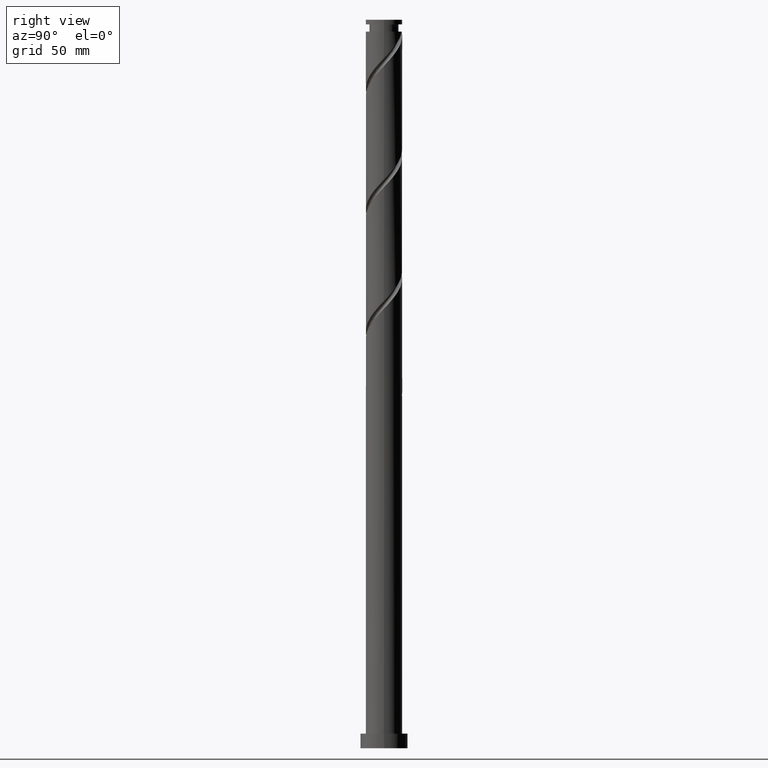
[diagram: clean part render]
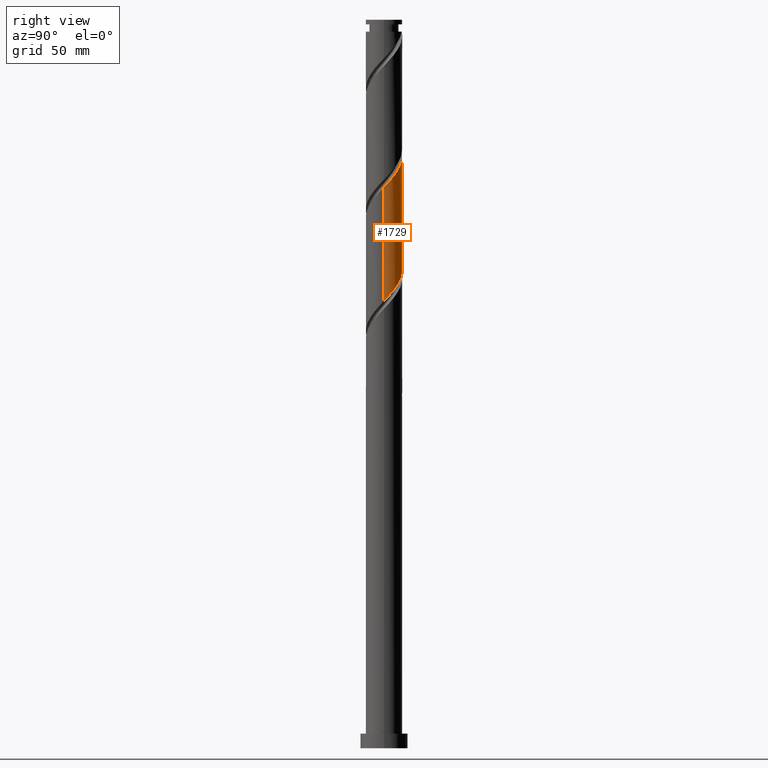
[diagram: same view with one face highlighted and labeled with its STEP entity id]
A machine part, right view. The second image highlights one B-rep face of the part: STEP entity #1729.
In plain terms, the highlighted cylindrical surface (edge-blend (fillet) strip) has radius 10 mm, axis along (-0, -0, -1).
Its self-contained STEP definition (entity closure, byte-faithful):
#57 = CARTESIAN_POINT ( 'NONE',  ( 3.984023718746290577, 9.172107446408757525, 257.9605896679708508 ) ) ;
#76 = CARTESIAN_POINT ( 'NONE',  ( -9.954323590151835432, 0.9546946436147952797, 277.9605896679709645 ) ) ;
#97 = CARTESIAN_POINT ( 'NONE',  ( -10.00000000000000178, 0.000000000000000000, 400.0000000000000000 ) ) ;
#106 = CARTESIAN_POINT ( 'NONE',  ( 6.795917408009032101, 7.410816190582412588, 316.8494785568597081 ) ) ;
#126 = FACE_OUTER_BOUND ( 'NONE', #889, .T. ) ;
#145 = CARTESIAN_POINT ( 'NONE',  ( 9.954323590151849643, 0.9546946436147862869, 309.0717007790820503 ) ) ;
#155 = CARTESIAN_POINT ( 'NONE',  ( -9.935289914203558226, 1.135787973490352654, 340.1828118901931362 ) ) ;
#172 = CARTESIAN_POINT ( 'NONE',  ( -10.00000000000001243, 0.5697373744643521309, 340.7851106706203268 ) ) ;
#188 = CARTESIAN_POINT ( 'NONE',  ( 0.9599533686096159979, 10.00915478735209696, 261.2939230013041652 ) ) ;
#208 = CARTESIAN_POINT ( 'NONE',  ( 10.00000000000000355, 1.186904184400837714E-14, 245.6415884670479386 ) ) ;
#210 = VERTEX_POINT ( 'NONE', #1443 ) ;
#217 = CARTESIAN_POINT ( 'NONE',  ( -8.705417805181468793, 4.920945116258621077, 273.5161452235265074 ) ) ;
#222 = CARTESIAN_POINT ( 'NONE',  ( 8.188205631952753194, 5.835921397340425365, 314.6272563346374795 ) ) ;
#247 = CARTESIAN_POINT ( 'NONE',  ( 9.222629978410214591, 4.005968835176815901, 312.4050341124153647 ) ) ;
#256 =( BOUNDED_CURVE ( )  B_SPLINE_CURVE ( 2, ( #873, #1924, #76, #1774, #556, #1324, #217, #1801, #398, #1764, #1793, #520, #1151, #993, #702, #1305, #1914, #188, #1332, #372, #57, #1461, #685, #1313, #830, #862, #1491, #529, #543, #1003, #1942, #1617, #208 ),
 .UNSPECIFIED., .F., .T. ) 
 B_SPLINE_CURVE_WITH_KNOTS ( ( 3, 2, 2, 2, 2, 2, 2, 2, 2, 2, 2, 2, 2, 2, 2, 2, 3 ),
 ( 0.6795286012773114059, 0.6833333333333333481, 0.6916666666666666519, 0.6999999999999999556, 0.7083333333333333703, 0.7166666666666666741, 0.7249999999999999778, 0.7333333333333332815, 0.7416666666666666963, 0.7500000000000000000, 0.7583333333333333037, 0.7666666666666667185, 0.7750000000000000222, 0.7833333333333333259, 0.7916666666666666297, 0.8000000000000000444, 0.8045286012773114059 ),
 .UNSPECIFIED. ) 
 CURVE ( )  GEOMETRIC_REPRESENTATION_ITEM ( )  RATIONAL_B_SPLINE_CURVE ( ( 0.9066196499552116039, 0.9068171577856243282, 0.9090909090909231605, 0.9041108139711716563, 0.9090909090909231605, 0.9041108139711716563, 0.9090909090909231605, 0.9041108139711716563, 0.9090909090909231605, 0.9041108139711716563, 0.9090909090909231605, 0.9041108139711716563, 0.9090909090909231605, 0.9041108139711716563, 0.9090909090909231605, 0.9041108139711716563, 0.9090909090909231605, 0.9041108139711716563, 0.9090909090909231605, 0.9041108139711716563, 0.9090909090909231605, 0.9041108139711716563, 0.9090909090909231605, 0.9041108139711716563, 0.9090909090909231605, 0.9041108139711716563, 0.9090909090909231605, 0.9041108139711716563, 0.9090909090909231605, 0.9041108139711716563, 0.9090909090909231605, 0.9063845652764704885, 0.9066196499552116039 ) ) 
 REPRESENTATION_ITEM ( '' )  );
#283 = CARTESIAN_POINT ( 'NONE',  ( 10.00000000000001776, 4.065968994420978722E-15, 308.0573686466716481 ) ) ;
#300 = CARTESIAN_POINT ( 'NONE',  ( 10.00000000000001954, 4.065968994420978722E-15, 308.0573686466716481 ) ) ;
#308 = CARTESIAN_POINT ( 'NONE',  ( -7.370218964083909974, 6.758688661379380846, 333.5161452235263937 ) ) ;
#309 = AXIS2_PLACEMENT_3D ( 'NONE', #608, #1689, #1242 ) ;
#353 = CARTESIAN_POINT ( 'NONE',  ( -3.019996379816877852, 9.590845212647922224, 327.9605896679708508 ) ) ;
#372 = CARTESIAN_POINT ( 'NONE',  ( 3.019996379816882293, 9.590845212647904461, 259.0717007790819935 ) ) ;
#398 = CARTESIAN_POINT ( 'NONE',  ( -7.492061519980878437, 6.623368793961415868, 271.2939230013042788 ) ) ;
#474 = CARTESIAN_POINT ( 'NONE',  ( -4.948051057675699305, 8.753369680169631906, 330.1828118901930793 ) ) ;
#484 = CARTESIAN_POINT ( 'NONE',  ( -1.989974874213244149, 9.800000000000013145, 326.8494785568597081 ) ) ;
#494 = CARTESIAN_POINT ( 'NONE',  ( -8.614372383899674190, 5.078640411715219294, 335.7383674457485654 ) ) ;
#520 = CARTESIAN_POINT ( 'NONE',  ( -5.106614982905509414, 8.661822755254421580, 267.9605896679708508 ) ) ;
#529 = CARTESIAN_POINT ( 'NONE',  ( 9.148159000562355203, 4.173233390011670707, 250.1828118901930793 ) ) ;
#543 = CARTESIAN_POINT ( 'NONE',  ( 9.482036394194125251, 3.176631206038579958, 249.0717007790819935 ) ) ;
#550 =( BOUNDED_CURVE ( )  B_SPLINE_CURVE ( 2, ( #300, #1845, #145, #1412, #625, #247, #890, #222, #1257, #106, #867, #710, #734, #552, #1188, #1798, #667, #1582, #484, #353, #1896, #474, #1265, #986, #308, #1121, #494, #1300, #966, #1421, #155, #172, #791 ),
 .UNSPECIFIED., .F., .T. ) 
 B_SPLINE_CURVE_WITH_KNOTS ( ( 3, 2, 2, 2, 2, 2, 2, 2, 2, 2, 2, 2, 2, 2, 2, 2, 3 ),
 ( 0.4295286012773115725, 0.4333333333333333481, 0.4416666666666666519, 0.4499999999999999556, 0.4583333333333333703, 0.4666666666666666741, 0.4749999999999999778, 0.4833333333333332815, 0.4916666666666666963, 0.5000000000000000000, 0.5083333333333333037, 0.5166666666666666075, 0.5250000000000000222, 0.5333333333333333259, 0.5416666666666667407, 0.5500000000000000444, 0.5545286012773112949 ),
 .UNSPECIFIED. ) 
 CURVE ( )  GEOMETRIC_REPRESENTATION_ITEM ( )  RATIONAL_B_SPLINE_CURVE ( ( 0.9066196499552174881, 0.9068171577856303234, 0.9090909090909291557, 0.9041108139711774294, 0.9090909090909291557, 0.9041108139711774294, 0.9090909090909291557, 0.9041108139711774294, 0.9090909090909291557, 0.9041108139711774294, 0.9090909090909291557, 0.9041108139711774294, 0.9090909090909291557, 0.9041108139711774294, 0.9090909090909291557, 0.9041108139711774294, 0.9090909090909291557, 0.9041108139711774294, 0.9090909090909291557, 0.9041108139711774294, 0.9090909090909291557, 0.9041108139711774294, 0.9090909090909291557, 0.9041108139711774294, 0.9090909090909291557, 0.9041108139711774294, 0.9090909090909291557, 0.9041108139711774294, 0.9090909090909291557, 0.9041108139711774294, 0.9090909090909291557, 0.9063845652764763727, 0.9066196499552174881 ) ) 
 REPRESENTATION_ITEM ( '' )  );
#552 = CARTESIAN_POINT ( 'NONE',  ( 3.194128978791649143, 9.534266101484794476, 321.2939230013042220 ) ) ;
#556 = CARTESIAN_POINT ( 'NONE',  ( -9.538305559066326822, 3.003452523660803841, 275.7383674457486791 ) ) ;
#563 = DIRECTION ( 'NONE',  ( -0.000000000000000000, -0.000000000000000000, -1.000000000000000000 ) ) ;
#608 = CARTESIAN_POINT ( 'NONE',  ( 0.000000000000000000, 0.000000000000000000, 400.0000000000000000 ) ) ;
#625 = CARTESIAN_POINT ( 'NONE',  ( 9.538305559066342809, 3.003452523660800288, 311.2939230013041652 ) ) ;
#657 = CARTESIAN_POINT ( 'NONE',  ( -10.00000000000001599, -1.195873233653229007E-16, 341.3907019800048488 ) ) ;
#667 = CARTESIAN_POINT ( 'NONE',  ( 0.09104542128180637128, 9.999585527973840371, 324.6272563346374795 ) ) ;
#668 = VERTEX_POINT ( 'NONE', #657 ) ;
#685 = CARTESIAN_POINT ( 'NONE',  ( 5.803951609303267034, 8.143349784754802201, 255.7383674457486222 ) ) ;
#702 = CARTESIAN_POINT ( 'NONE',  ( -2.168086594982426174, 9.762141185040174918, 264.6272563346375364 ) ) ;
#710 = CARTESIAN_POINT ( 'NONE',  ( 5.106614982905524514, 8.661822755254428685, 319.0717007790820503 ) ) ;
#725 = DIRECTION ( 'NONE',  ( -0.000000000000000000, -0.000000000000000000, -1.000000000000000000 ) ) ;
#732 = EDGE_CURVE ( 'NONE', #1876, #210, #1865, .T. ) ;
#734 = CARTESIAN_POINT ( 'NONE',  ( 4.150371980848582609, 9.098044428369609804, 320.1828118901929088 ) ) ;
#791 = CARTESIAN_POINT ( 'NONE',  ( -10.00000000000001599, -1.195873233653229007E-16, 341.3907019800047919 ) ) ;
#830 = CARTESIAN_POINT ( 'NONE',  ( 7.370218964083904645, 6.758688661379370188, 253.5161452235263937 ) ) ;
#862 = CARTESIAN_POINT ( 'NONE',  ( 8.080585767236984296, 5.984047433418739459, 252.4050341124153363 ) ) ;
#867 = CARTESIAN_POINT ( 'NONE',  ( 5.951266195457275643, 8.036319472918419748, 317.9605896679707371 ) ) ;
#873 = CARTESIAN_POINT ( 'NONE',  ( -10.00000000000000000, 1.162986719727772808E-14, 278.9749218003812530 ) ) ;
#877 = ORIENTED_EDGE ( 'NONE', *, *, #922, .F. ) ;
#889 = EDGE_LOOP ( 'NONE', ( #877, #1758, #1519, #1835 ) ) ;
#890 = CARTESIAN_POINT ( 'NONE',  ( 8.705417805181479451, 4.920945116258624630, 313.5161452235263368 ) ) ;
#922 = EDGE_CURVE ( 'NONE', #1876, #668, #550, .T. ) ;
#966 = CARTESIAN_POINT ( 'NONE',  ( -9.482036394194134132, 3.176631206038594168, 337.9605896679708508 ) ) ;
#986 = CARTESIAN_POINT ( 'NONE',  ( -6.659852160930831211, 7.533329889340008023, 332.4050341124153078 ) ) ;
#993 = CARTESIAN_POINT ( 'NONE',  ( -3.194128978791638485, 9.534266101484783817, 265.7383674457486791 ) ) ;
#1003 = CARTESIAN_POINT ( 'NONE',  ( 9.815913787825893522, 2.180029022065497202, 247.9605896679708792 ) ) ;
#1121 = CARTESIAN_POINT ( 'NONE',  ( -8.080585767236989625, 5.984047433418756334, 334.6272563346375364 ) ) ;
#1151 = CARTESIAN_POINT ( 'NONE',  ( -4.150371980848574616, 9.098044428369600922, 266.8494785568597649 ) ) ;
#1188 = CARTESIAN_POINT ( 'NONE',  ( 2.168086594982438164, 9.762141185040183800, 322.4050341124153078 ) ) ;
#1240 = VECTOR ( 'NONE', #725, 1000.000000000000000 ) ;
#1242 = DIRECTION ( 'NONE',  ( -1.000000000000000000, 0.000000000000000000, 0.000000000000000000 ) ) ;
#1257 = CARTESIAN_POINT ( 'NONE',  ( 7.492061519980892648, 6.623368793961415868, 315.7383674457485085 ) ) ;
#1265 = CARTESIAN_POINT ( 'NONE',  ( -5.803951609303265258, 8.143349784754819964, 331.2939230013041083 ) ) ;
#1300 = CARTESIAN_POINT ( 'NONE',  ( -9.148159000562365861, 4.173233390011680477, 336.8494785568598218 ) ) ;
#1305 = CARTESIAN_POINT ( 'NONE',  ( -1.142044211173214086, 9.990016268595569571, 263.5161452235263937 ) ) ;
#1313 = CARTESIAN_POINT ( 'NONE',  ( 6.659852160930827658, 7.533329889339992036, 254.6272563346375080 ) ) ;
#1324 = CARTESIAN_POINT ( 'NONE',  ( -9.222629978410189722, 4.005968835176819454, 274.6272563346374795 ) ) ;
#1332 = CARTESIAN_POINT ( 'NONE',  ( 1.989974874213248146, 9.800000000000000711, 260.1828118901931362 ) ) ;
#1364 = CYLINDRICAL_SURFACE ( 'NONE', #309, 10.00000000000000178 ) ;
#1412 = CARTESIAN_POINT ( 'NONE',  ( 9.853981139722474580, 2.000936212144784676, 310.1828118901931930 ) ) ;
#1421 = CARTESIAN_POINT ( 'NONE',  ( -9.815913787825905956, 2.180029022065508304, 339.0717007790820503 ) ) ;
#1443 = CARTESIAN_POINT ( 'NONE',  ( 10.00000000000000355, 1.186904184400837556E-14, 245.6415884670479386 ) ) ;
#1461 = CARTESIAN_POINT ( 'NONE',  ( 4.948051057675696640, 8.753369680169619471, 256.8494785568598218 ) ) ;
#1491 = CARTESIAN_POINT ( 'NONE',  ( 8.614372383899667085, 5.078640411715206859, 251.2939230013041652 ) ) ;
#1519 = ORIENTED_EDGE ( 'NONE', *, *, #1635, .F. ) ;
#1582 = CARTESIAN_POINT ( 'NONE',  ( -0.9599533686096075602, 10.00915478735211295, 325.7383674457486222 ) ) ;
#1617 = CARTESIAN_POINT ( 'NONE',  ( 10.00000000000000355, 0.5697373744643301485, 246.2471797764325174 ) ) ;
#1635 = EDGE_CURVE ( 'NONE', #1964, #210, #256, .T. ) ;
#1689 = DIRECTION ( 'NONE',  ( -0.000000000000000000, -0.000000000000000000, -1.000000000000000000 ) ) ;
#1697 = LINE ( 'NONE', #97, #1240 ) ;
#1705 = CARTESIAN_POINT ( 'NONE',  ( -10.00000000000000178, 1.162986719727772808E-14, 278.9749218003812530 ) ) ;
#1729 = ADVANCED_FACE ( 'NONE', ( #126 ), #1364, .T. ) ;
#1758 = ORIENTED_EDGE ( 'NONE', *, *, #732, .T. ) ;
#1764 = CARTESIAN_POINT ( 'NONE',  ( -6.795917408009019667, 7.410816190582407259, 270.1828118901930793 ) ) ;
#1774 = CARTESIAN_POINT ( 'NONE',  ( -9.853981139722460370, 2.000936212144785564, 276.8494785568597649 ) ) ;
#1793 = CARTESIAN_POINT ( 'NONE',  ( -5.951266195457262320, 8.036319472918414419, 269.0717007790819935 ) ) ;
#1798 = CARTESIAN_POINT ( 'NONE',  ( 1.142044211173220081, 9.990016268595582005, 323.5161452235264505 ) ) ;
#1801 = CARTESIAN_POINT ( 'NONE',  ( -8.188205631952737207, 5.835921397340423589, 272.4050341124153078 ) ) ;
#1835 = ORIENTED_EDGE ( 'NONE', *, *, #1848, .F. ) ;
#1845 = CARTESIAN_POINT ( 'NONE',  ( 10.00000000000001954, 0.4784399928675006630, 308.5659171722357428 ) ) ;
#1848 = EDGE_CURVE ( 'NONE', #668, #1964, #1697, .T. ) ;
#1865 = LINE ( 'NONE', #1966, #1977 ) ;
#1876 = VERTEX_POINT ( 'NONE', #283 ) ;
#1896 = CARTESIAN_POINT ( 'NONE',  ( -3.984023718746287912, 9.172107446408778841, 329.0717007790819366 ) ) ;
#1914 = CARTESIAN_POINT ( 'NONE',  ( -0.09104542128179893279, 9.999585527973833265, 262.4050341124153647 ) ) ;
#1924 = CARTESIAN_POINT ( 'NONE',  ( -10.00000000000000355, 0.4784399928674881730, 278.4663732748171583 ) ) ;
#1942 = CARTESIAN_POINT ( 'NONE',  ( 9.935289914203551120, 1.135787973490348213, 246.8494785568597365 ) ) ;
#1964 = VERTEX_POINT ( 'NONE', #1705 ) ;
#1966 = CARTESIAN_POINT ( 'NONE',  ( 10.00000000000000178, 1.224646799147353454E-15, 400.0000000000000000 ) ) ;
#1977 = VECTOR ( 'NONE', #563, 1000.000000000000000 ) ;